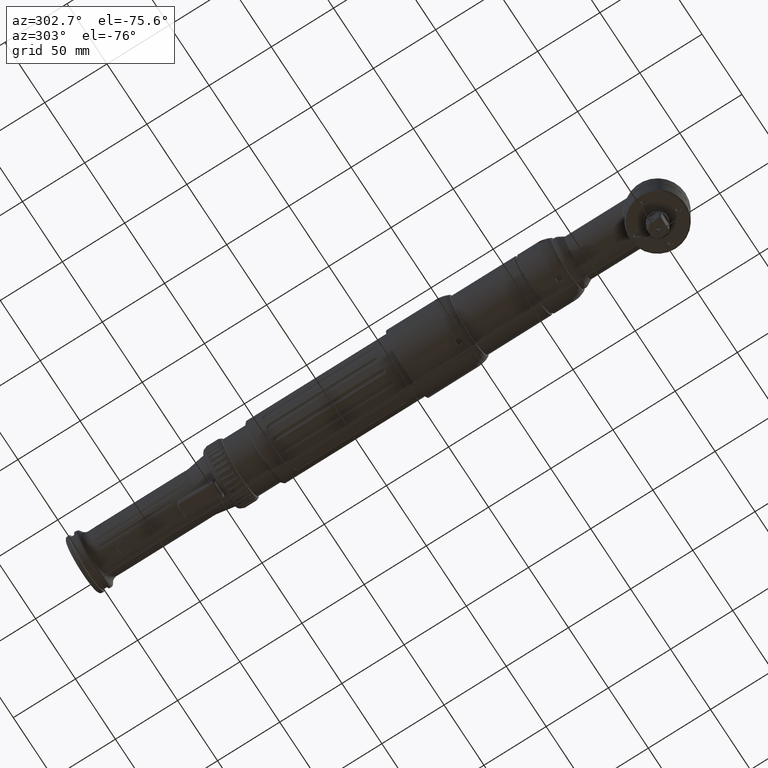
[diagram: clean part render]
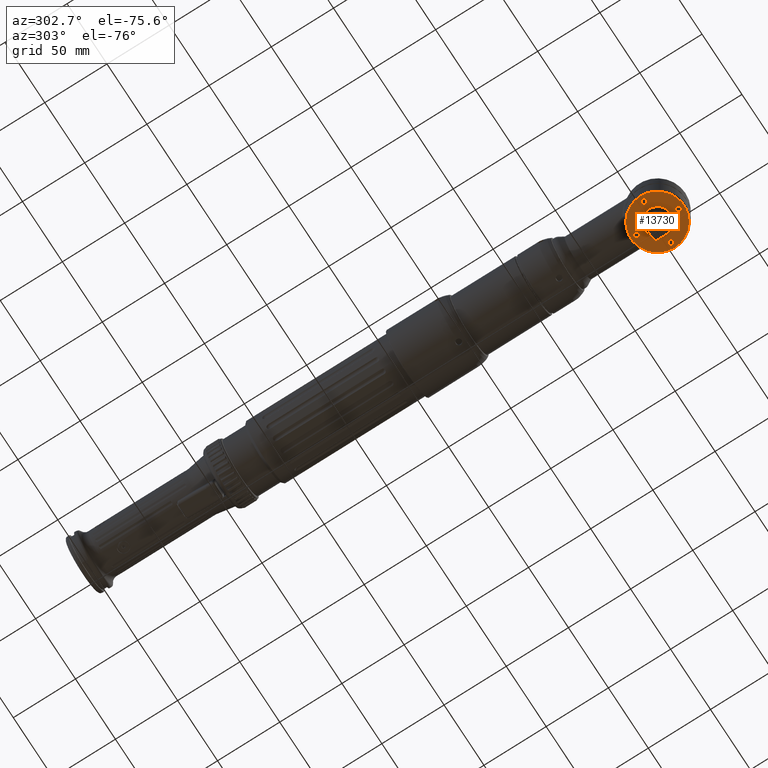
[diagram: same view with one face highlighted and labeled with its STEP entity id]
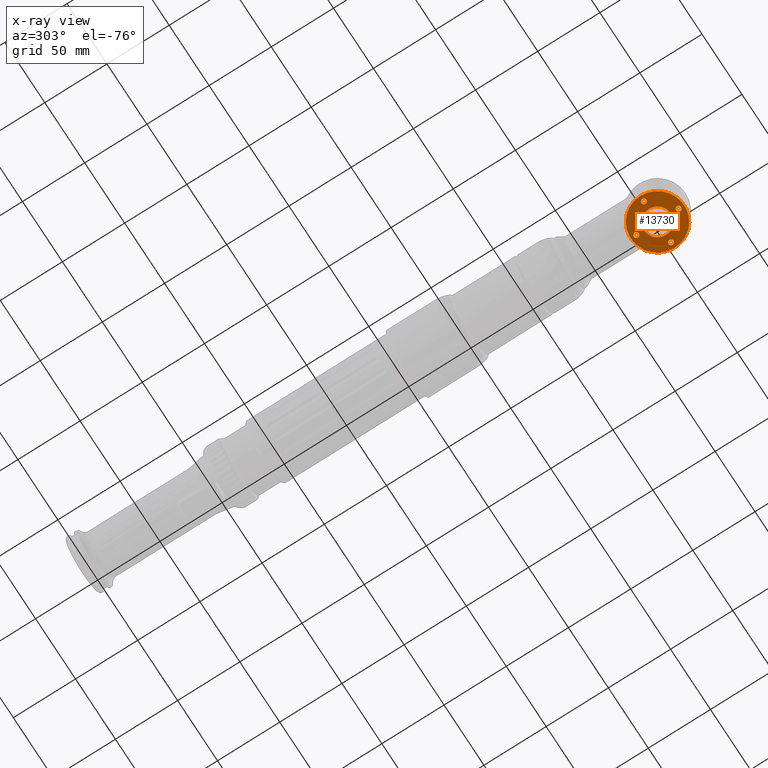
[diagram: x-ray of the same camera — body ghosted, the highlighted face saturated]
A machine part, auxiliary view. The second image highlights one B-rep face of the part: STEP entity #13730.
The next image is the same camera in x-ray: the body ghosted, the highlighted face saturated — about 0% of this face is hidden behind the body in this view.
In plain terms, the highlighted planar face has unit normal (0, -0, -1).
Its self-contained STEP definition (entity closure, byte-faithful):
#2208=FACE_BOUND('',#3378,.T.);
#2209=FACE_BOUND('',#3379,.T.);
#2210=FACE_BOUND('',#3380,.T.);
#2211=FACE_BOUND('',#3381,.T.);
#2212=FACE_BOUND('',#3382,.T.);
#2482=FACE_OUTER_BOUND('',#3377,.T.);
#3377=EDGE_LOOP('',(#8633));
#3378=EDGE_LOOP('',(#8634));
#3379=EDGE_LOOP('',(#8635));
#3380=EDGE_LOOP('',(#8636));
#3381=EDGE_LOOP('',(#8637));
#3382=EDGE_LOOP('',(#8638));
#4504=CIRCLE('',#14647,10.75);
#4505=CIRCLE('',#14649,21.5);
#4506=CIRCLE('',#14650,2.05);
#4507=CIRCLE('',#14651,2.05);
#4508=CIRCLE('',#14652,2.05);
#4509=CIRCLE('',#14653,2.05);
#5412=VERTEX_POINT('',#21209);
#5413=VERTEX_POINT('',#21212);
#5414=VERTEX_POINT('',#21214);
#5415=VERTEX_POINT('',#21216);
#5416=VERTEX_POINT('',#21218);
#5417=VERTEX_POINT('',#21220);
#6700=EDGE_CURVE('',#5412,#5412,#4504,.T.);
#6701=EDGE_CURVE('',#5413,#5413,#4505,.T.);
#6702=EDGE_CURVE('',#5414,#5414,#4506,.T.);
#6703=EDGE_CURVE('',#5415,#5415,#4507,.T.);
#6704=EDGE_CURVE('',#5416,#5416,#4508,.T.);
#6705=EDGE_CURVE('',#5417,#5417,#4509,.T.);
#8633=ORIENTED_EDGE('',*,*,#6701,.F.);
#8634=ORIENTED_EDGE('',*,*,#6702,.T.);
#8635=ORIENTED_EDGE('',*,*,#6703,.T.);
#8636=ORIENTED_EDGE('',*,*,#6704,.T.);
#8637=ORIENTED_EDGE('',*,*,#6705,.T.);
#8638=ORIENTED_EDGE('',*,*,#6700,.F.);
#12374=PLANE('',#14648);
#13730=ADVANCED_FACE('',(#2482,#2208,#2209,#2210,#2211,#2212),#12374,.T.);
#14647=AXIS2_PLACEMENT_3D('',#21210,#16557,#16558);
#14648=AXIS2_PLACEMENT_3D('',#21211,#16559,#16560);
#14649=AXIS2_PLACEMENT_3D('',#21213,#16561,#16562);
#14650=AXIS2_PLACEMENT_3D('',#21215,#16563,#16564);
#14651=AXIS2_PLACEMENT_3D('',#21217,#16565,#16566);
#14652=AXIS2_PLACEMENT_3D('',#21219,#16567,#16568);
#14653=AXIS2_PLACEMENT_3D('',#21221,#16569,#16570);
#16557=DIRECTION('center_axis',(5.00640500456419E-17,-2.76389813842193E-33,
-1.));
#16558=DIRECTION('ref_axis',(1.,0.,5.00640500456419E-17));
#16559=DIRECTION('center_axis',(5.00640500456419E-17,-2.76389813842193E-33,
-1.));
#16560=DIRECTION('ref_axis',(0.,-1.,0.));
#16561=DIRECTION('center_axis',(-5.00640500456419E-17,2.76389813842193E-33,
1.));
#16562=DIRECTION('ref_axis',(1.,0.,5.00640500456419E-17));
#16563=DIRECTION('center_axis',(-5.00640500456419E-17,2.76389813842193E-33,
1.));
#16564=DIRECTION('ref_axis',(-2.95954914130399E-32,-1.,2.76389813842193E-33));
#16565=DIRECTION('center_axis',(-5.00640500456419E-17,2.76389813842193E-33,
1.));
#16566=DIRECTION('ref_axis',(-2.95954914130399E-32,-1.,2.76389813842193E-33));
#16567=DIRECTION('center_axis',(-5.00640500456419E-17,2.76389813842193E-33,
1.));
#16568=DIRECTION('ref_axis',(-2.95954914130399E-32,-1.,2.76389813842193E-33));
#16569=DIRECTION('center_axis',(-5.00640500456419E-17,2.76389813842193E-33,
1.));
#16570=DIRECTION('ref_axis',(-2.95954914130399E-32,-1.,2.76389813842193E-33));
#21209=CARTESIAN_POINT('',(-10.75,1.90800637030859E-14,-36.5));
#21210=CARTESIAN_POINT('Origin',(4.46996081688784E-15,1.77635683940025E-14,
-36.5));
#21211=CARTESIAN_POINT('Origin',(-22.5,1.77635683940025E-14,-36.5));
#21212=CARTESIAN_POINT('',(-21.5,1.51305777758357E-14,-36.5));
#21213=CARTESIAN_POINT('Origin',(4.46996081688784E-15,1.77635683940025E-14,
-36.5));
#21214=CARTESIAN_POINT('',(17.,-2.04999999999998,-36.5));
#21215=CARTESIAN_POINT('Origin',(17.,1.5681668835452E-14,-36.5));
#21216=CARTESIAN_POINT('',(-17.,-2.04999999999998,-36.5));
#21217=CARTESIAN_POINT('Origin',(-17.,1.97546956821606E-14,-36.5));
#21218=CARTESIAN_POINT('',(4.46996081688784E-15,14.95,-36.5));
#21219=CARTESIAN_POINT('Origin',(4.46996081688784E-15,17.,-36.5));
#21220=CARTESIAN_POINT('',(4.46996081688784E-15,-19.05,-36.5));
#21221=CARTESIAN_POINT('Origin',(4.46996081688784E-15,-17.,-36.5));